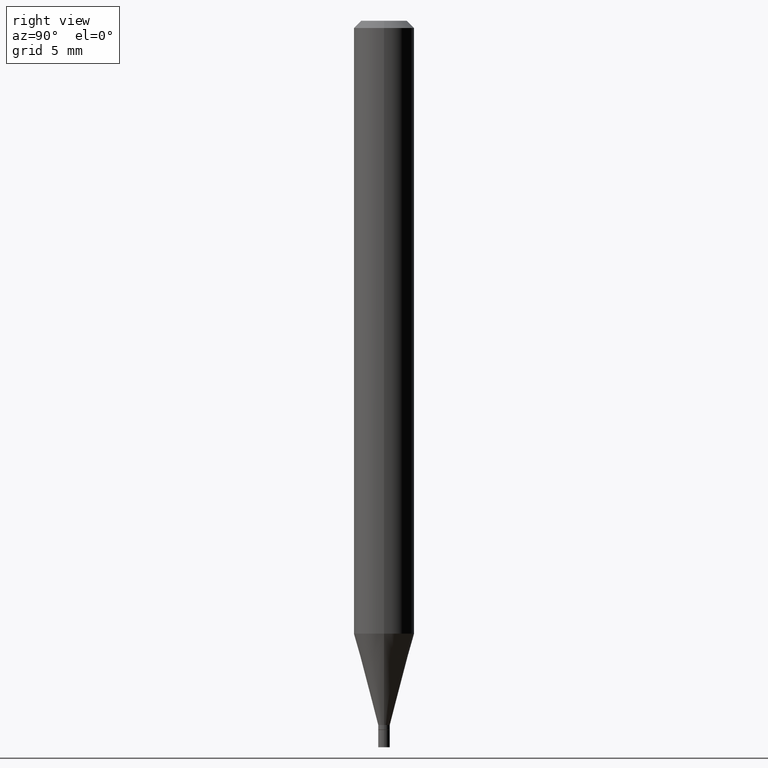
[diagram: clean part render]
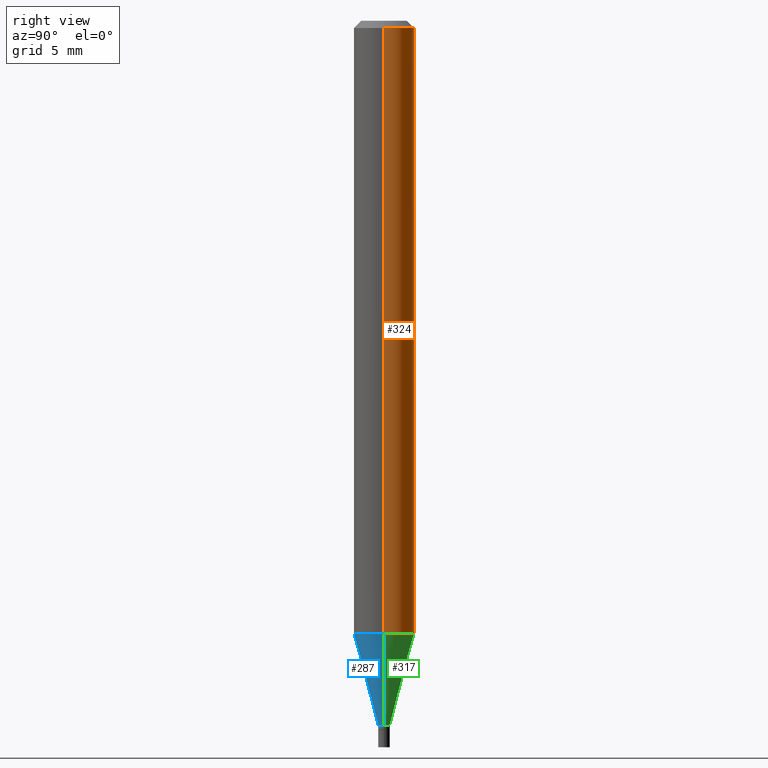
[diagram: same view with three faces highlighted in distinct colors, each labeled with its STEP entity id]
A machine part, right view with three faces highlighted in distinct colors.
Their STEP definitions:

[orange] entity #324 — the highlighted cylindrical surface (edge-blend (fillet) strip) has radius 1.5875 mm, axis along (-0, 0, 1).
#19 = DIRECTION ( 'NONE',  ( -2.445468806185136597E-29, 3.491481338843145583E-15, 1.000000000000000000 ) ) ;
#21 = DIRECTION ( 'NONE',  ( -2.445468806185136597E-29, 3.491481338843145583E-15, 1.000000000000000000 ) ) ;
#23 = CARTESIAN_POINT ( 'NONE',  ( -0.06250000000000000000, 4.440892098500626162E-16, -3.074334431409316114E-30 ) ) ;
#33 = EDGE_CURVE ( 'NONE', #254, #427, #292, .T. ) ;
#35 = AXIS2_PLACEMENT_3D ( 'NONE', #181, #185, #327 ) ;
#49 = VECTOR ( 'NONE', #123, 39.37007874015748143 ) ;
#58 = DIRECTION ( 'NONE',  ( 1.000000000000000000, -6.982962677686266711E-15, 4.876176775795935793E-29 ) ) ;
#73 = ORIENTED_EDGE ( 'NONE', *, *, #33, .F. ) ;
#89 = CARTESIAN_POINT ( 'NONE',  ( 3.094817645626298552E-29, -4.418579386290752571E-15, -1.265531434217771922 ) ) ;
#91 = CARTESIAN_POINT ( 'NONE',  ( 0.06250000000000000000, -4.888073874380388472E-16, -0.01499999999999999944 ) ) ;
#98 = DIRECTION ( 'NONE',  ( 1.000000000000000000, -6.982962677686262766E-15, 0.000000000000000000 ) ) ;
#100 = CYLINDRICAL_SURFACE ( 'NONE', #289, 0.06250000000000000000 ) ;
#122 = VECTOR ( 'NONE', #455, 39.37007874015748143 ) ;
#123 = DIRECTION ( 'NONE',  ( -2.445468806185136877E-29, 3.491481338843145188E-15, 1.000000000000000000 ) ) ;
#138 = VERTEX_POINT ( 'NONE', #371 ) ;
#156 = CARTESIAN_POINT ( 'NONE',  ( -0.06250000000000000000, -1.791386593336637406E-15, -0.01499999999999999944 ) ) ;
#168 = LINE ( 'NONE', #309, #49 ) ;
#181 = CARTESIAN_POINT ( 'NONE',  ( 3.668203209277705088E-31, -5.237222008264718399E-17, -0.01499999999999999944 ) ) ;
#185 = DIRECTION ( 'NONE',  ( -2.445468806185136597E-29, 3.491481338843145583E-15, 1.000000000000000000 ) ) ;
#186 = CIRCLE ( 'NONE', #248, 0.06250000000000000000 ) ;
#234 = EDGE_CURVE ( 'NONE', #138, #275, #186, .T. ) ;
#248 = AXIS2_PLACEMENT_3D ( 'NONE', #89, #19, #98 ) ;
#254 = VERTEX_POINT ( 'NONE', #91 ) ;
#259 = CARTESIAN_POINT ( 'NONE',  ( -0.06250000000000000000, -3.974490176440689955E-15, -1.265531434217771922 ) ) ;
#275 = VERTEX_POINT ( 'NONE', #259 ) ;
#285 = ORIENTED_EDGE ( 'NONE', *, *, #437, .F. ) ;
#289 = AXIS2_PLACEMENT_3D ( 'NONE', #381, #21, #58 ) ;
#292 = CIRCLE ( 'NONE', #35, 0.06250000000000000000 ) ;
#309 = CARTESIAN_POINT ( 'NONE',  ( 0.06250000000000000000, -4.364351673553916694E-16, 3.047610484872459871E-30 ) ) ;
#324 = ADVANCED_FACE ( 'NONE', ( #383 ), #100, .T. ) ;
#327 = DIRECTION ( 'NONE',  ( 1.000000000000000000, -6.982962677686266711E-15, 0.000000000000000000 ) ) ;
#340 = LINE ( 'NONE', #23, #122 ) ;
#349 = ORIENTED_EDGE ( 'NONE', *, *, #234, .T. ) ;
#353 = EDGE_CURVE ( 'NONE', #275, #427, #340, .T. ) ;
#371 = CARTESIAN_POINT ( 'NONE',  ( 0.06250000000000000000, -4.855014553646144241E-15, -1.265531434217771922 ) ) ;
#381 = CARTESIAN_POINT ( 'NONE',  ( 0.000000000000000000, 0.000000000000000000, 0.000000000000000000 ) ) ;
#383 = FACE_OUTER_BOUND ( 'NONE', #391, .T. ) ;
#391 = EDGE_LOOP ( 'NONE', ( #349, #458, #73, #285 ) ) ;
#427 = VERTEX_POINT ( 'NONE', #156 ) ;
#437 = EDGE_CURVE ( 'NONE', #138, #254, #168, .T. ) ;
#455 = DIRECTION ( 'NONE',  ( -2.445468806185136877E-29, 3.491481338843145188E-15, 1.000000000000000000 ) ) ;
#458 = ORIENTED_EDGE ( 'NONE', *, *, #353, .T. ) ;

[blue] entity #287 — the highlighted conical surface has half-angle 15 deg.
#40 = ORIENTED_EDGE ( 'NONE', *, *, #402, .F. ) ;
#52 = CARTESIAN_POINT ( 'NONE',  ( 0.01199999999999992219, -5.160409418810168864E-15, -1.454000000000000181 ) ) ;
#61 = LINE ( 'NONE', #385, #453 ) ;
#63 = VERTEX_POINT ( 'NONE', #434 ) ;
#86 = CARTESIAN_POINT ( 'NONE',  ( 3.555711644193189020E-29, -5.076613866677933538E-15, -1.454000000000000181 ) ) ;
#105 = VERTEX_POINT ( 'NONE', #52 ) ;
#125 = LINE ( 'NONE', #197, #431 ) ;
#128 = CARTESIAN_POINT ( 'NONE',  ( 3.555711644193189020E-29, -5.076613866677933538E-15, -1.454000000000000181 ) ) ;
#138 = VERTEX_POINT ( 'NONE', #371 ) ;
#144 = EDGE_LOOP ( 'NONE', ( #40, #396, #174, #422 ) ) ;
#174 = ORIENTED_EDGE ( 'NONE', *, *, #420, .T. ) ;
#191 = CIRCLE ( 'NONE', #350, 0.01199999999999992219 ) ;
#195 = DIRECTION ( 'NONE',  ( -2.445468806185136597E-29, 3.491481338843145583E-15, 1.000000000000000000 ) ) ;
#197 = CARTESIAN_POINT ( 'NONE',  ( -0.01199999999999992219, -4.991348738386722228E-15, -1.454000000000000181 ) ) ;
#200 = DIRECTION ( 'NONE',  ( 1.000000000000000000, -6.982962677686296687E-15, 0.000000000000000000 ) ) ;
#210 = AXIS2_PLACEMENT_3D ( 'NONE', #347, #261, #409 ) ;
#213 = EDGE_CURVE ( 'NONE', #275, #138, #269, .T. ) ;
#226 = DIRECTION ( 'NONE',  ( -2.445468806185136597E-29, 3.491481338843145583E-15, 1.000000000000000000 ) ) ;
#252 = AXIS2_PLACEMENT_3D ( 'NONE', #86, #226, #200 ) ;
#259 = CARTESIAN_POINT ( 'NONE',  ( -0.06250000000000000000, -3.974490176440689955E-15, -1.265531434217771922 ) ) ;
#261 = DIRECTION ( 'NONE',  ( -2.445468806185136597E-29, 3.491481338843145583E-15, 1.000000000000000000 ) ) ;
#263 = DIRECTION ( 'NONE',  ( -0.2588190451025211281, 5.211531920934547886E-15, 0.9659258262890679791 ) ) ;
#266 = DIRECTION ( 'NONE',  ( 0.2588190451025211281, 1.565188264969622954E-15, 0.9659258262890679791 ) ) ;
#269 = CIRCLE ( 'NONE', #210, 0.06250000000000000000 ) ;
#272 = CONICAL_SURFACE ( 'NONE', #252, 0.01199999999999992219, 0.2617993877991498519 ) ;
#275 = VERTEX_POINT ( 'NONE', #259 ) ;
#287 = ADVANCED_FACE ( 'NONE', ( #341 ), #272, .T. ) ;
#304 = DIRECTION ( 'NONE',  ( 1.000000000000000000, -6.982962677686296687E-15, 0.000000000000000000 ) ) ;
#341 = FACE_OUTER_BOUND ( 'NONE', #144, .T. ) ;
#347 = CARTESIAN_POINT ( 'NONE',  ( 3.094817645626298552E-29, -4.418579386290752571E-15, -1.265531434217771922 ) ) ;
#350 = AXIS2_PLACEMENT_3D ( 'NONE', #128, #195, #304 ) ;
#371 = CARTESIAN_POINT ( 'NONE',  ( 0.06250000000000000000, -4.855014553646144241E-15, -1.265531434217771922 ) ) ;
#385 = CARTESIAN_POINT ( 'NONE',  ( 0.01199999999999992219, -5.160409418810168864E-15, -1.454000000000000181 ) ) ;
#396 = ORIENTED_EDGE ( 'NONE', *, *, #412, .T. ) ;
#402 = EDGE_CURVE ( 'NONE', #63, #275, #125, .T. ) ;
#409 = DIRECTION ( 'NONE',  ( 1.000000000000000000, -6.982962677686262766E-15, 0.000000000000000000 ) ) ;
#412 = EDGE_CURVE ( 'NONE', #63, #105, #191, .T. ) ;
#420 = EDGE_CURVE ( 'NONE', #105, #138, #61, .T. ) ;
#422 = ORIENTED_EDGE ( 'NONE', *, *, #213, .F. ) ;
#431 = VECTOR ( 'NONE', #263, 39.37007874015748854 ) ;
#434 = CARTESIAN_POINT ( 'NONE',  ( -0.01199999999999992219, -4.482919457413706092E-15, -1.454000000000000181 ) ) ;
#453 = VECTOR ( 'NONE', #266, 39.37007874015748854 ) ;

[green] entity #317 — the highlighted conical surface has half-angle 15 deg.
#19 = DIRECTION ( 'NONE',  ( -2.445468806185136597E-29, 3.491481338843145583E-15, 1.000000000000000000 ) ) ;
#38 = CONICAL_SURFACE ( 'NONE', #145, 0.01199999999999992219, 0.2617993877991498519 ) ;
#52 = CARTESIAN_POINT ( 'NONE',  ( 0.01199999999999992219, -5.160409418810168864E-15, -1.454000000000000181 ) ) ;
#53 = DIRECTION ( 'NONE',  ( 1.000000000000000000, -6.982962677686296687E-15, 0.000000000000000000 ) ) ;
#60 = DIRECTION ( 'NONE',  ( 1.000000000000000000, -6.982962677686296687E-15, 0.000000000000000000 ) ) ;
#61 = LINE ( 'NONE', #385, #453 ) ;
#63 = VERTEX_POINT ( 'NONE', #434 ) ;
#75 = ORIENTED_EDGE ( 'NONE', *, *, #234, .F. ) ;
#89 = CARTESIAN_POINT ( 'NONE',  ( 3.094817645626298552E-29, -4.418579386290752571E-15, -1.265531434217771922 ) ) ;
#98 = DIRECTION ( 'NONE',  ( 1.000000000000000000, -6.982962677686262766E-15, 0.000000000000000000 ) ) ;
#103 = ORIENTED_EDGE ( 'NONE', *, *, #420, .F. ) ;
#105 = VERTEX_POINT ( 'NONE', #52 ) ;
#124 = CARTESIAN_POINT ( 'NONE',  ( 3.555711644193189020E-29, -5.076613866677933538E-15, -1.454000000000000181 ) ) ;
#125 = LINE ( 'NONE', #197, #431 ) ;
#138 = VERTEX_POINT ( 'NONE', #371 ) ;
#145 = AXIS2_PLACEMENT_3D ( 'NONE', #450, #166, #53 ) ;
#166 = DIRECTION ( 'NONE',  ( -2.445468806185136597E-29, 3.491481338843145583E-15, 1.000000000000000000 ) ) ;
#186 = CIRCLE ( 'NONE', #248, 0.06250000000000000000 ) ;
#197 = CARTESIAN_POINT ( 'NONE',  ( -0.01199999999999992219, -4.991348738386722228E-15, -1.454000000000000181 ) ) ;
#217 = CIRCLE ( 'NONE', #311, 0.01199999999999992219 ) ;
#234 = EDGE_CURVE ( 'NONE', #138, #275, #186, .T. ) ;
#235 = FACE_OUTER_BOUND ( 'NONE', #313, .T. ) ;
#236 = DIRECTION ( 'NONE',  ( -2.445468806185136597E-29, 3.491481338843145583E-15, 1.000000000000000000 ) ) ;
#248 = AXIS2_PLACEMENT_3D ( 'NONE', #89, #19, #98 ) ;
#259 = CARTESIAN_POINT ( 'NONE',  ( -0.06250000000000000000, -3.974490176440689955E-15, -1.265531434217771922 ) ) ;
#263 = DIRECTION ( 'NONE',  ( -0.2588190451025211281, 5.211531920934547886E-15, 0.9659258262890679791 ) ) ;
#266 = DIRECTION ( 'NONE',  ( 0.2588190451025211281, 1.565188264969622954E-15, 0.9659258262890679791 ) ) ;
#275 = VERTEX_POINT ( 'NONE', #259 ) ;
#294 = EDGE_CURVE ( 'NONE', #105, #63, #217, .T. ) ;
#295 = ORIENTED_EDGE ( 'NONE', *, *, #294, .T. ) ;
#311 = AXIS2_PLACEMENT_3D ( 'NONE', #124, #236, #60 ) ;
#313 = EDGE_LOOP ( 'NONE', ( #295, #436, #75, #103 ) ) ;
#317 = ADVANCED_FACE ( 'NONE', ( #235 ), #38, .T. ) ;
#371 = CARTESIAN_POINT ( 'NONE',  ( 0.06250000000000000000, -4.855014553646144241E-15, -1.265531434217771922 ) ) ;
#385 = CARTESIAN_POINT ( 'NONE',  ( 0.01199999999999992219, -5.160409418810168864E-15, -1.454000000000000181 ) ) ;
#402 = EDGE_CURVE ( 'NONE', #63, #275, #125, .T. ) ;
#420 = EDGE_CURVE ( 'NONE', #105, #138, #61, .T. ) ;
#431 = VECTOR ( 'NONE', #263, 39.37007874015748854 ) ;
#434 = CARTESIAN_POINT ( 'NONE',  ( -0.01199999999999992219, -4.482919457413706092E-15, -1.454000000000000181 ) ) ;
#436 = ORIENTED_EDGE ( 'NONE', *, *, #402, .T. ) ;
#450 = CARTESIAN_POINT ( 'NONE',  ( 3.555711644193189020E-29, -5.076613866677933538E-15, -1.454000000000000181 ) ) ;
#453 = VECTOR ( 'NONE', #266, 39.37007874015748854 ) ;